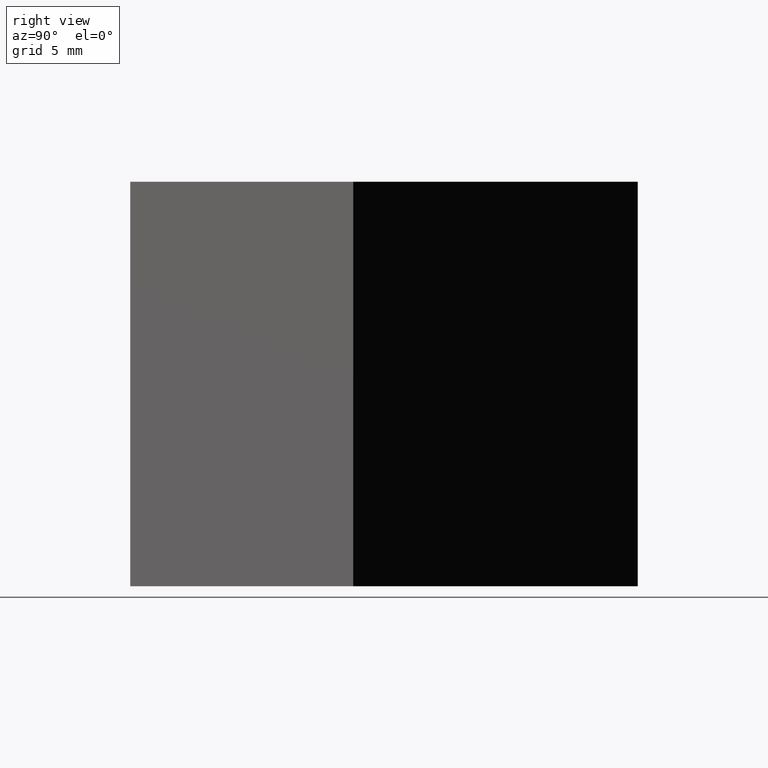
[diagram: clean part render]
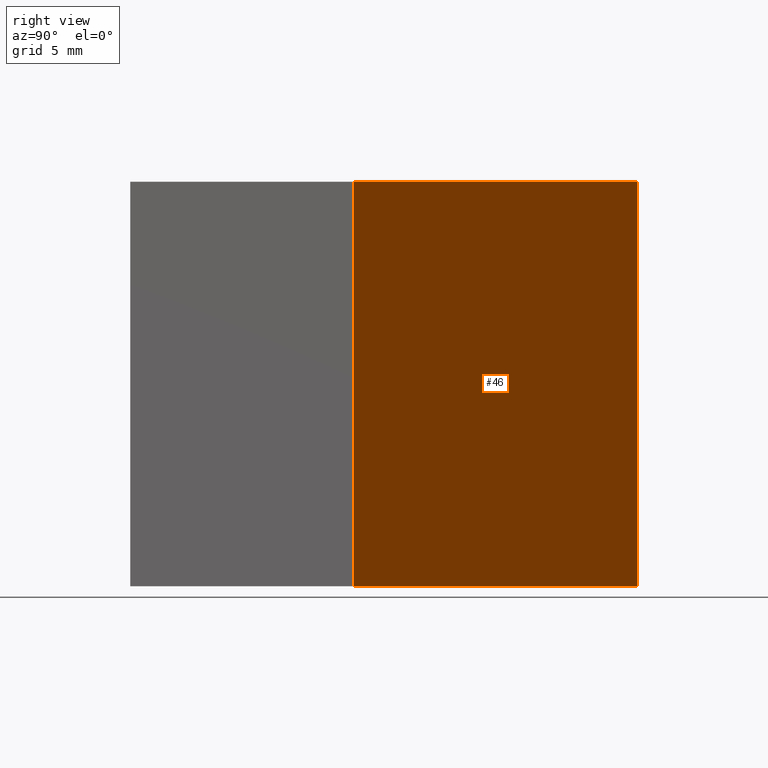
[diagram: same view with one face highlighted and labeled with its STEP entity id]
A machine part, right view. The second image highlights one B-rep face of the part: STEP entity #46.
In plain terms, the highlighted planar face has unit normal (-0.7032, -0.711, 0).
Its self-contained STEP definition (entity closure, byte-faithful):
#32 = VERTEX_POINT ( 'NONE', #98 ) ;
#33 = VERTEX_POINT ( 'NONE', #144 ) ;
#35 = EDGE_CURVE ( 'NONE', #33, #141, #122, .T. ) ;
#36 = LINE ( 'NONE', #90, #66 ) ;
#37 = VECTOR ( 'NONE', #64, 999.9999999999998900 ) ;
#38 = VERTEX_POINT ( 'NONE', #59 ) ;
#44 = ORIENTED_EDGE ( 'NONE', *, *, #35, .T. ) ;
#46 = ADVANCED_FACE ( 'NONE', ( #167 ), #135, .F. ) ;
#49 = EDGE_CURVE ( 'NONE', #38, #32, #75, .T. ) ;
#50 = CARTESIAN_POINT ( 'NONE',  ( 21.54217066758669200, 14.63250925510907100, 25.00000000000000000 ) ) ;
#53 = LINE ( 'NONE', #50, #151 ) ;
#59 = CARTESIAN_POINT ( 'NONE',  ( 21.54217066758669200, 14.63250925510907100, 25.00000000000000000 ) ) ;
#64 = DIRECTION ( 'NONE',  ( -0.7109728236074630600, 0.7032194850056640000, 0.0000000000000000000 ) ) ;
#65 = DIRECTION ( 'NONE',  ( -0.7109728236074630600, 0.7032194850056640000, 0.0000000000000000000 ) ) ;
#66 = VECTOR ( 'NONE', #117, 1000.000000000000000 ) ;
#68 = EDGE_LOOP ( 'NONE', ( #44, #147, #161, #69 ) ) ;
#69 = ORIENTED_EDGE ( 'NONE', *, *, #153, .T. ) ;
#75 = LINE ( 'NONE', #113, #99 ) ;
#77 = AXIS2_PLACEMENT_3D ( 'NONE', #162, #82, #129 ) ;
#82 = DIRECTION ( 'NONE',  ( -0.7032194850056640000, -0.7109728236074630600, 0.0000000000000000000 ) ) ;
#90 = CARTESIAN_POINT ( 'NONE',  ( 3.767850077400120700, 32.21299638025067200, 25.00000000000000000 ) ) ;
#98 = CARTESIAN_POINT ( 'NONE',  ( 3.767850077400120700, 32.21299638025067200, 25.00000000000000000 ) ) ;
#99 = VECTOR ( 'NONE', #65, 999.9999999999998900 ) ;
#100 = EDGE_CURVE ( 'NONE', #32, #141, #36, .T. ) ;
#109 = DIRECTION ( 'NONE',  ( -0.0000000000000000000, -0.0000000000000000000, -1.000000000000000000 ) ) ;
#113 = CARTESIAN_POINT ( 'NONE',  ( 21.54217066758669200, 14.63250925510907100, 25.00000000000000000 ) ) ;
#117 = DIRECTION ( 'NONE',  ( -0.0000000000000000000, -0.0000000000000000000, -1.000000000000000000 ) ) ;
#122 = LINE ( 'NONE', #142, #37 ) ;
#129 = DIRECTION ( 'NONE',  ( 0.7109728236074630600, -0.7032194850056640000, 0.0000000000000000000 ) ) ;
#135 = PLANE ( 'NONE',  #77 ) ;
#137 = CARTESIAN_POINT ( 'NONE',  ( 3.767850077400120700, 32.21299638025067200, 0.0000000000000000000 ) ) ;
#141 = VERTEX_POINT ( 'NONE', #137 ) ;
#142 = CARTESIAN_POINT ( 'NONE',  ( 21.54217066758669200, 14.63250925510907100, 0.0000000000000000000 ) ) ;
#144 = CARTESIAN_POINT ( 'NONE',  ( 21.54217066758669200, 14.63250925510907100, 0.0000000000000000000 ) ) ;
#147 = ORIENTED_EDGE ( 'NONE', *, *, #100, .F. ) ;
#151 = VECTOR ( 'NONE', #109, 1000.000000000000000 ) ;
#153 = EDGE_CURVE ( 'NONE', #38, #33, #53, .T. ) ;
#161 = ORIENTED_EDGE ( 'NONE', *, *, #49, .F. ) ;
#162 = CARTESIAN_POINT ( 'NONE',  ( 21.54217066758669200, 14.63250925510907100, 25.00000000000000000 ) ) ;
#167 = FACE_OUTER_BOUND ( 'NONE', #68, .T. ) ;